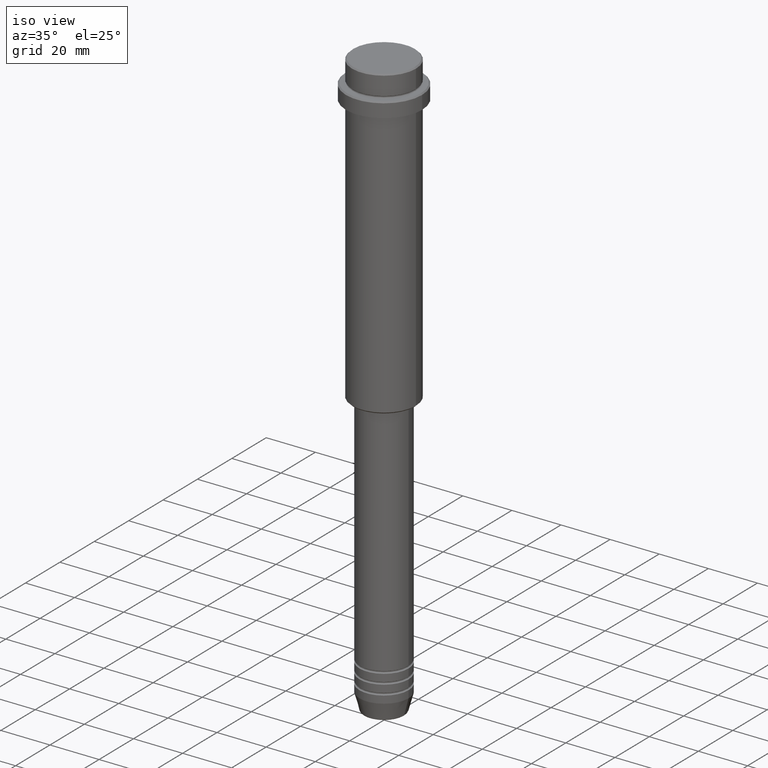
[diagram: clean part render]
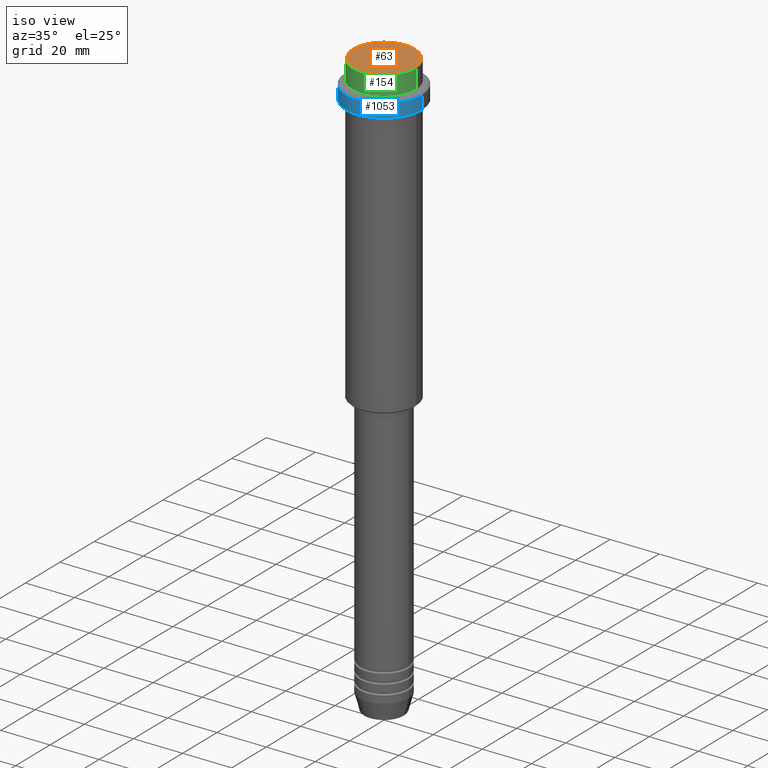
[diagram: same view with three faces highlighted in distinct colors, each labeled with its STEP entity id]
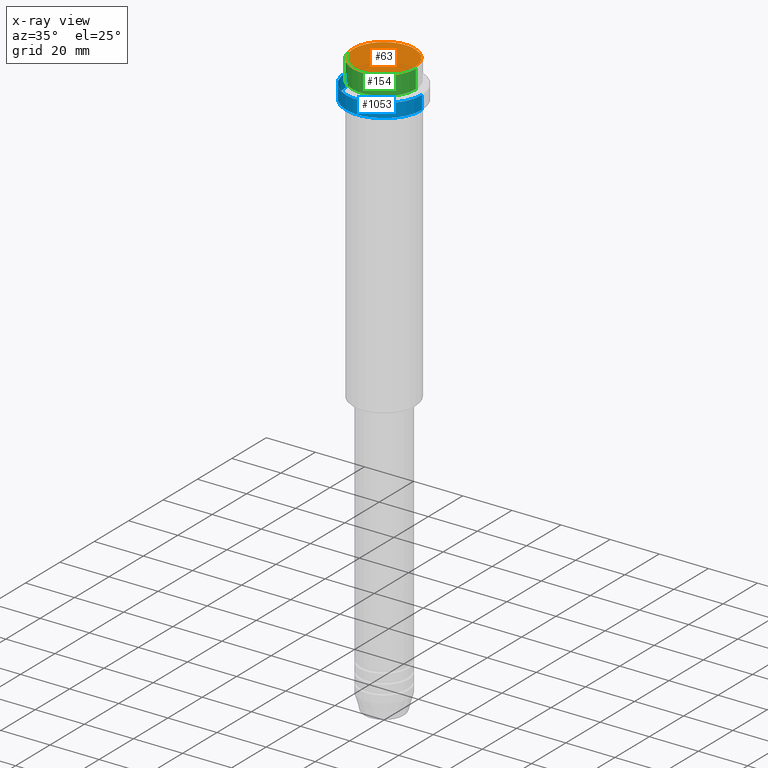
[diagram: x-ray of the same camera — body ghosted, the three highlighted faces saturated]
A machine part, iso view with three faces highlighted in distinct colors.
The next image is the same camera in x-ray (body ghosted, the three faces saturated) — at least one of them is partly hidden behind the body in this view.
Their STEP definitions:

[orange] entity #63 — the highlighted planar face has unit normal (0, -0, 1).
#63 = ADVANCED_FACE ( 'NONE', ( #192 ), #1388, .T. ) ;
#79 = CARTESIAN_POINT ( 'NONE',  ( 0.000000000000000000, 0.000000000000000000, 0.000000000000000000 ) ) ;
#113 = AXIS2_PLACEMENT_3D ( 'NONE', #79, #521, #856 ) ;
#185 = DIRECTION ( 'NONE',  ( -0.000000000000000000, -0.000000000000000000, 1.000000000000000000 ) ) ;
#192 = FACE_OUTER_BOUND ( 'NONE', #371, .T. ) ;
#201 = ORIENTED_EDGE ( 'NONE', *, *, #1408, .T. ) ;
#275 = ORIENTED_EDGE ( 'NONE', *, *, #572, .T. ) ;
#341 = CARTESIAN_POINT ( 'NONE',  ( 0.000000000000000000, 0.000000000000000000, 0.000000000000000000 ) ) ;
#353 = DIRECTION ( 'NONE',  ( -0.000000000000000000, -0.000000000000000000, 1.000000000000000000 ) ) ;
#370 = VERTEX_POINT ( 'NONE', #719 ) ;
#371 = EDGE_LOOP ( 'NONE', ( #201, #275 ) ) ;
#404 = CIRCLE ( 'NONE', #494, 12.50000000000001243 ) ;
#494 = AXIS2_PLACEMENT_3D ( 'NONE', #966, #185, #613 ) ;
#521 = DIRECTION ( 'NONE',  ( 0.000000000000000000, -0.000000000000000000, 1.000000000000000000 ) ) ;
#572 = EDGE_CURVE ( 'NONE', #1370, #370, #626, .T. ) ;
#613 = DIRECTION ( 'NONE',  ( 1.000000000000000000, 0.000000000000000000, 0.000000000000000000 ) ) ;
#626 = CIRCLE ( 'NONE', #956, 12.50000000000001243 ) ;
#719 = CARTESIAN_POINT ( 'NONE',  ( -12.50000000000001243, 0.000000000000000000, 0.000000000000000000 ) ) ;
#856 = DIRECTION ( 'NONE',  ( 1.000000000000000000, 0.000000000000000000, 0.000000000000000000 ) ) ;
#956 = AXIS2_PLACEMENT_3D ( 'NONE', #341, #353, #1327 ) ;
#966 = CARTESIAN_POINT ( 'NONE',  ( 0.000000000000000000, 0.000000000000000000, 0.000000000000000000 ) ) ;
#1160 = CARTESIAN_POINT ( 'NONE',  ( 12.50000000000001243, 1.561424668912876097E-15, 0.000000000000000000 ) ) ;
#1327 = DIRECTION ( 'NONE',  ( 1.000000000000000000, 0.000000000000000000, 0.000000000000000000 ) ) ;
#1370 = VERTEX_POINT ( 'NONE', #1160 ) ;
#1388 = PLANE ( 'NONE',  #113 ) ;
#1408 = EDGE_CURVE ( 'NONE', #370, #1370, #404, .T. ) ;

[blue] entity #1053 — the highlighted cylindrical surface (partial cylindrical patch) has radius 15.5 mm, axis along (-0, -0, 1).
#21 = CYLINDRICAL_SURFACE ( 'NONE', #607, 15.50000000000000000 ) ;
#104 = DIRECTION ( 'NONE',  ( 1.000000000000000000, 0.000000000000000000, 0.000000000000000000 ) ) ;
#130 = CARTESIAN_POINT ( 'NONE',  ( 15.50000000000000000, 0.000000000000000000, -9.500000000000040856 ) ) ;
#131 = VERTEX_POINT ( 'NONE', #130 ) ;
#243 = FACE_OUTER_BOUND ( 'NONE', #783, .T. ) ;
#286 = VERTEX_POINT ( 'NONE', #714 ) ;
#360 = CARTESIAN_POINT ( 'NONE',  ( -15.50000000000000000, 1.898202538678397557E-15, 0.000000000000000000 ) ) ;
#389 = ORIENTED_EDGE ( 'NONE', *, *, #1190, .F. ) ;
#403 = CARTESIAN_POINT ( 'NONE',  ( 15.50000000000000000, 0.000000000000000000, 0.000000000000000000 ) ) ;
#446 = ORIENTED_EDGE ( 'NONE', *, *, #981, .T. ) ;
#470 = AXIS2_PLACEMENT_3D ( 'NONE', #829, #580, #1153 ) ;
#486 = LINE ( 'NONE', #360, #978 ) ;
#548 = VERTEX_POINT ( 'NONE', #1299 ) ;
#580 = DIRECTION ( 'NONE',  ( 0.000000000000000000, 0.000000000000000000, -1.000000000000000000 ) ) ;
#607 = AXIS2_PLACEMENT_3D ( 'NONE', #662, #1303, #104 ) ;
#636 = DIRECTION ( 'NONE',  ( -0.000000000000000000, -0.000000000000000000, 1.000000000000000000 ) ) ;
#662 = CARTESIAN_POINT ( 'NONE',  ( 0.000000000000000000, 0.000000000000000000, 0.000000000000000000 ) ) ;
#714 = CARTESIAN_POINT ( 'NONE',  ( 15.50000000000000000, 0.000000000000000000, -15.00000000000000178 ) ) ;
#783 = EDGE_LOOP ( 'NONE', ( #389, #446, #1029, #973 ) ) ;
#802 = EDGE_CURVE ( 'NONE', #131, #548, #976, .T. ) ;
#812 = DIRECTION ( 'NONE',  ( -0.000000000000000000, -0.000000000000000000, 1.000000000000000000 ) ) ;
#829 = CARTESIAN_POINT ( 'NONE',  ( 0.000000000000000000, 0.000000000000000000, -9.500000000000040856 ) ) ;
#973 = ORIENTED_EDGE ( 'NONE', *, *, #802, .T. ) ;
#976 = CIRCLE ( 'NONE', #470, 15.50000000000000000 ) ;
#978 = VECTOR ( 'NONE', #812, 1000.000000000000000 ) ;
#981 = EDGE_CURVE ( 'NONE', #1401, #286, #1310, .T. ) ;
#1004 = VECTOR ( 'NONE', #636, 1000.000000000000000 ) ;
#1029 = ORIENTED_EDGE ( 'NONE', *, *, #1328, .T. ) ;
#1053 = ADVANCED_FACE ( 'NONE', ( #243 ), #21, .T. ) ;
#1075 = CARTESIAN_POINT ( 'NONE',  ( 0.000000000000000000, 0.000000000000000000, -15.00000000000000178 ) ) ;
#1153 = DIRECTION ( 'NONE',  ( 1.000000000000000000, 0.000000000000000000, 0.000000000000000000 ) ) ;
#1161 = DIRECTION ( 'NONE',  ( -0.000000000000000000, -0.000000000000000000, 1.000000000000000000 ) ) ;
#1172 = CARTESIAN_POINT ( 'NONE',  ( -15.50000000000000000, 1.898202538678397557E-15, -15.00000000000000178 ) ) ;
#1190 = EDGE_CURVE ( 'NONE', #1401, #548, #486, .T. ) ;
#1288 = AXIS2_PLACEMENT_3D ( 'NONE', #1075, #1161, #1392 ) ;
#1290 = LINE ( 'NONE', #403, #1004 ) ;
#1299 = CARTESIAN_POINT ( 'NONE',  ( -15.50000000000000000, 1.898202538678397557E-15, -9.500000000000040856 ) ) ;
#1303 = DIRECTION ( 'NONE',  ( -0.000000000000000000, -0.000000000000000000, 1.000000000000000000 ) ) ;
#1310 = CIRCLE ( 'NONE', #1288, 15.50000000000000000 ) ;
#1328 = EDGE_CURVE ( 'NONE', #286, #131, #1290, .T. ) ;
#1392 = DIRECTION ( 'NONE',  ( 1.000000000000000000, 0.000000000000000000, 0.000000000000000000 ) ) ;
#1401 = VERTEX_POINT ( 'NONE', #1172 ) ;

[green] entity #154 — the highlighted cylindrical surface (partial cylindrical patch) has radius 13 mm, axis along (-0, -0, 1).
#23 = DIRECTION ( 'NONE',  ( 1.000000000000000000, 0.000000000000000000, 0.000000000000000000 ) ) ;
#26 = CYLINDRICAL_SURFACE ( 'NONE', #1374, 12.99999999999999822 ) ;
#38 = ORIENTED_EDGE ( 'NONE', *, *, #680, .T. ) ;
#44 = CARTESIAN_POINT ( 'NONE',  ( 12.99999999999999822, 0.000000000000000000, -7.999999999999998224 ) ) ;
#55 = CARTESIAN_POINT ( 'NONE',  ( -12.99999999999999822, 1.592040838891558898E-15, -0.5000000000000038858 ) ) ;
#129 = DIRECTION ( 'NONE',  ( -0.000000000000000000, -0.000000000000000000, 1.000000000000000000 ) ) ;
#154 = ADVANCED_FACE ( 'NONE', ( #551 ), #26, .T. ) ;
#156 = VERTEX_POINT ( 'NONE', #561 ) ;
#159 = LINE ( 'NONE', #283, #287 ) ;
#256 = ORIENTED_EDGE ( 'NONE', *, *, #1056, .T. ) ;
#263 = CIRCLE ( 'NONE', #1064, 12.99999999999999822 ) ;
#273 = VERTEX_POINT ( 'NONE', #55 ) ;
#283 = CARTESIAN_POINT ( 'NONE',  ( -12.99999999999999822, 1.592040838891558898E-15, 0.000000000000000000 ) ) ;
#287 = VECTOR ( 'NONE', #610, 1000.000000000000000 ) ;
#355 = CARTESIAN_POINT ( 'NONE',  ( 0.000000000000000000, 0.000000000000000000, 0.000000000000000000 ) ) ;
#363 = EDGE_CURVE ( 'NONE', #156, #273, #159, .T. ) ;
#469 = DIRECTION ( 'NONE',  ( 1.000000000000000000, 0.000000000000000000, 0.000000000000000000 ) ) ;
#475 = CARTESIAN_POINT ( 'NONE',  ( 12.99999999999999822, 0.000000000000000000, -0.5000000000000038858 ) ) ;
#551 = FACE_OUTER_BOUND ( 'NONE', #1185, .T. ) ;
#561 = CARTESIAN_POINT ( 'NONE',  ( -12.99999999999999822, 1.592040838891558898E-15, -7.999999999999998224 ) ) ;
#579 = EDGE_CURVE ( 'NONE', #833, #731, #1227, .T. ) ;
#592 = ORIENTED_EDGE ( 'NONE', *, *, #579, .T. ) ;
#610 = DIRECTION ( 'NONE',  ( -0.000000000000000000, -0.000000000000000000, 1.000000000000000000 ) ) ;
#629 = CIRCLE ( 'NONE', #1226, 12.99999999999999822 ) ;
#669 = CARTESIAN_POINT ( 'NONE',  ( 0.000000000000000000, 0.000000000000000000, -0.5000000000000038858 ) ) ;
#677 = CARTESIAN_POINT ( 'NONE',  ( 12.99999999999999822, 0.000000000000000000, 0.000000000000000000 ) ) ;
#680 = EDGE_CURVE ( 'NONE', #731, #273, #263, .T. ) ;
#703 = ORIENTED_EDGE ( 'NONE', *, *, #363, .F. ) ;
#731 = VERTEX_POINT ( 'NONE', #475 ) ;
#795 = VECTOR ( 'NONE', #129, 1000.000000000000000 ) ;
#833 = VERTEX_POINT ( 'NONE', #44 ) ;
#1056 = EDGE_CURVE ( 'NONE', #156, #833, #629, .T. ) ;
#1064 = AXIS2_PLACEMENT_3D ( 'NONE', #669, #1218, #23 ) ;
#1185 = EDGE_LOOP ( 'NONE', ( #703, #256, #592, #38 ) ) ;
#1210 = CARTESIAN_POINT ( 'NONE',  ( 0.000000000000000000, 0.000000000000000000, -7.999999999999998224 ) ) ;
#1218 = DIRECTION ( 'NONE',  ( 0.000000000000000000, 0.000000000000000000, -1.000000000000000000 ) ) ;
#1225 = DIRECTION ( 'NONE',  ( -0.000000000000000000, -0.000000000000000000, 1.000000000000000000 ) ) ;
#1226 = AXIS2_PLACEMENT_3D ( 'NONE', #1210, #1225, #1314 ) ;
#1227 = LINE ( 'NONE', #677, #795 ) ;
#1308 = DIRECTION ( 'NONE',  ( -0.000000000000000000, -0.000000000000000000, 1.000000000000000000 ) ) ;
#1314 = DIRECTION ( 'NONE',  ( 1.000000000000000000, 0.000000000000000000, 0.000000000000000000 ) ) ;
#1374 = AXIS2_PLACEMENT_3D ( 'NONE', #355, #1308, #469 ) ;